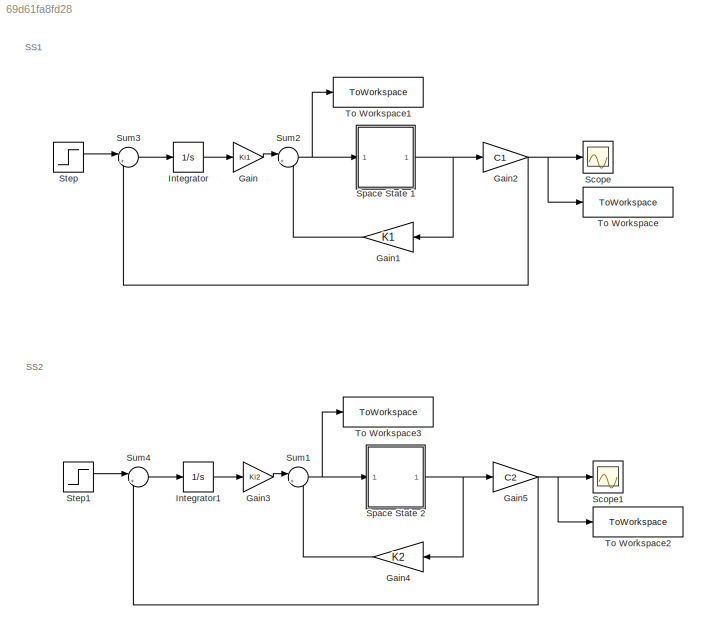
MODEL slx_69d61fa8fd28
KIND model
CONFIG AbsTol = auto
CONFIG EnableMultiTasking = off
CONFIG FixedStep = auto
CONFIG MaxStep = auto
CONFIG MinStep = auto
CONFIG RelTol = 1e-3
CONFIG SampleTimeConstraint = Unconstrained
CONFIG SolverName = VariableStepAuto
CONFIG StartTime = 0.0
CONFIG StopTime = 5
BLOCK [Gain] Gain
  Gain = Ki1
BLOCK [Gain] Gain1
  Gain = K1
  Multiplication = Matrix(K*u)
  NameLocation = top
BLOCK [Gain] Gain2
  Gain = C1
  Multiplication = Matrix(K*u)
BLOCK [Gain] Gain3
  Gain = Ki2
BLOCK [Gain] Gain4
  Gain = K2
  Multiplication = Matrix(K*u)
  NameLocation = top
BLOCK [Gain] Gain5
  Gain = C2
  Multiplication = Matrix(K*u)
BLOCK [Integrator] Integrator
  InitialCondition = xi10
  Ports = [1, 1]
BLOCK [Integrator] Integrator1
  InitialCondition = xi20
  Ports = [1, 1]
BLOCK [Scope] Scope
  Floating = off
  NumInputPorts = 1
  Ports = [1]
  ScopeSpecificationString = Simulink.scopes.TimeScopeBlockCfg('CurrentConfiguration', extmgr.ConfigurationSet(extmgr.Configuration('Core','General UI',true),extmgr.Configuration('Core','Source UI',true),extmgr.Configuration('Sources','WiredSimulink',true),extmgr.Configuration('Visuals','Time Domain',true,'SerializedDisplays',{struct('MinYLimReal','-0.13124','MaxYLimReal','1.18119','YLabelReal','','MinYLimMag','0.00000','MaxY...<+1374ch>
BLOCK [Scope] Scope1
  Floating = off
  NumInputPorts = 1
  Ports = [1]
  ScopeSpecificationString = Simulink.scopes.TimeScopeBlockCfg('CurrentConfiguration', extmgr.ConfigurationSet(extmgr.Configuration('Core','General UI',true),extmgr.Configuration('Core','Source UI',true),extmgr.Configuration('Sources','WiredSimulink',true,'DataLoggingVariableName','ScopeData1'),extmgr.Configuration('Visuals','Time Domain',true,'SerializedDisplays',{struct('MinYLimReal','-0.13107','MaxYLimReal','1.17961','YLab...<+1418ch>
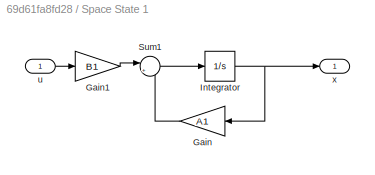
BLOCK [SubSystem] Space State 1
  Ports = [1, 1]
  RequestExecContextInheritance = off
BLOCK [Gain] Space State 1/Gain
  Gain = A1
  Multiplication = Matrix(K*u)
  NameLocation = top
BLOCK [Gain] Space State 1/Gain1
  Gain = B1
  Multiplication = Matrix(K*u)
BLOCK [Integrator] Space State 1/Integrator
  InitialCondition = x10
  Ports = [1, 1]
BLOCK [Sum] Space State 1/Sum1
  Inputs = |++
  Ports = [2, 1]
BLOCK [Inport] Space State 1/u
BLOCK [Outport] Space State 1/x
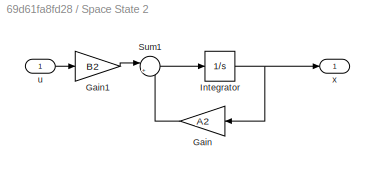
BLOCK [SubSystem] Space State 2
  Ports = [1, 1]
  RequestExecContextInheritance = off
BLOCK [Gain] Space State 2/Gain
  Gain = A2
  Multiplication = Matrix(K*u)
  NameLocation = top
BLOCK [Gain] Space State 2/Gain1
  Gain = B2
  Multiplication = Matrix(K*u)
BLOCK [Integrator] Space State 2/Integrator
  InitialCondition = x20
  Ports = [1, 1]
BLOCK [Sum] Space State 2/Sum1
  Inputs = |++
  Ports = [2, 1]
BLOCK [Inport] Space State 2/u
BLOCK [Outport] Space State 2/x
BLOCK [Step] Step
  SampleTime = 0
  Time = 0
BLOCK [Step] Step1
  SampleTime = 0
  Time = 0
BLOCK [Sum] Sum1
  Inputs = |+-
  Ports = [2, 1]
BLOCK [Sum] Sum2
  Inputs = |+-
  Ports = [2, 1]
BLOCK [Sum] Sum3
  Inputs = |+-
  Ports = [2, 1]
BLOCK [Sum] Sum4
  Inputs = |+-
  Ports = [2, 1]
BLOCK [ToWorkspace] To Workspace
  FixptAsFi = on
  MaxDataPoints = inf
  Ports = [1]
  SampleTime = -1
  SaveFormat = Timeseries
  VariableName = y1
BLOCK [ToWorkspace] To Workspace1
  FixptAsFi = on
  MaxDataPoints = inf
  Ports = [1]
  SampleTime = -1
  SaveFormat = Timeseries
  VariableName = u1
BLOCK [ToWorkspace] To Workspace2
  FixptAsFi = on
  MaxDataPoints = inf
  Ports = [1]
  SampleTime = -1
  SaveFormat = Timeseries
  VariableName = y2
BLOCK [ToWorkspace] To Workspace3
  FixptAsFi = on
  MaxDataPoints = inf
  Ports = [1]
  SampleTime = -1
  SaveFormat = Timeseries
  VariableName = u2
ANNOTATION (root): SS1
ANNOTATION (root): SS2
LINE Gain1:1 -> Sum2:2
NET Gain2:1 -> Scope:1, Sum3:2, To Workspace:1
LINE Gain3:1 -> Sum1:1
LINE Gain4:1 -> Sum1:2
NET Gain5:1 -> Scope1:1, Sum4:2, To Workspace2:1
LINE Gain:1 -> Sum2:1
LINE Integrator1:1 -> Gain3:1
LINE Integrator:1 -> Gain:1
LINE Space State 1/Gain1:1 -> Space State 1/Sum1:1
LINE Space State 1/Gain:1 -> Space State 1/Sum1:2
NET Space State 1/Integrator:1 -> Space State 1/Gain:1, Space State 1/x:1
LINE Space State 1/Sum1:1 -> Space State 1/Integrator:1
LINE Space State 1/u:1 -> Space State 1/Gain1:1
NET Space State 1:1 -> Gain1:1, Gain2:1
LINE Space State 2/Gain1:1 -> Space State 2/Sum1:1
LINE Space State 2/Gain:1 -> Space State 2/Sum1:2
NET Space State 2/Integrator:1 -> Space State 2/Gain:1, Space State 2/x:1
LINE Space State 2/Sum1:1 -> Space State 2/Integrator:1
LINE Space State 2/u:1 -> Space State 2/Gain1:1
NET Space State 2:1 -> Gain4:1, Gain5:1
LINE Step1:1 -> Sum4:1
LINE Step:1 -> Sum3:1
NET Sum1:1 -> Space State 2:1, To Workspace3:1
NET Sum2:1 -> Space State 1:1, To Workspace1:1
LINE Sum3:1 -> Integrator:1
LINE Sum4:1 -> Integrator1:1
note: NET lines group one-source signal fan-out (src -> all destinations, sorted); 1:1 wires keep LINE
